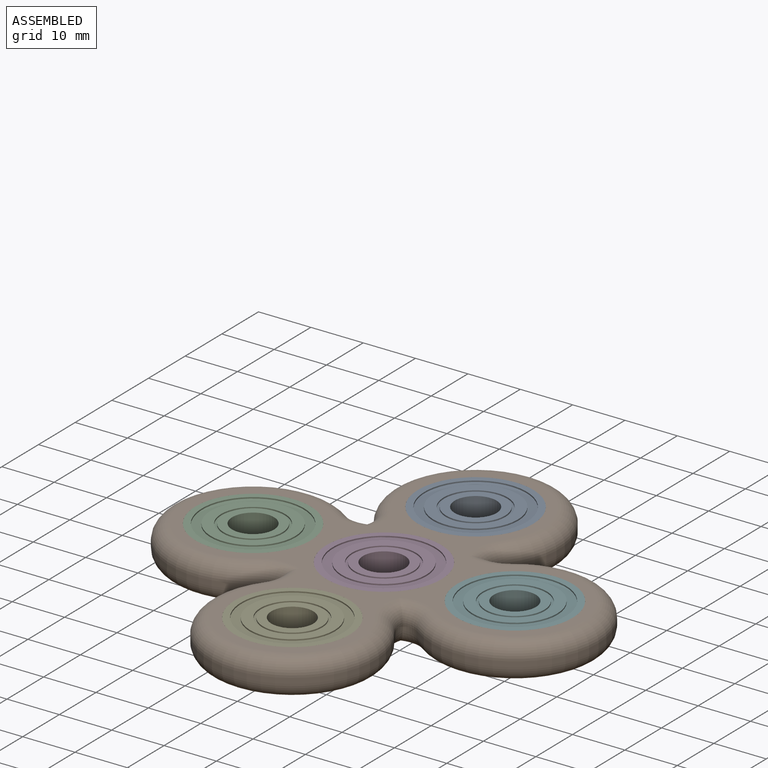
[diagram: assembled view]
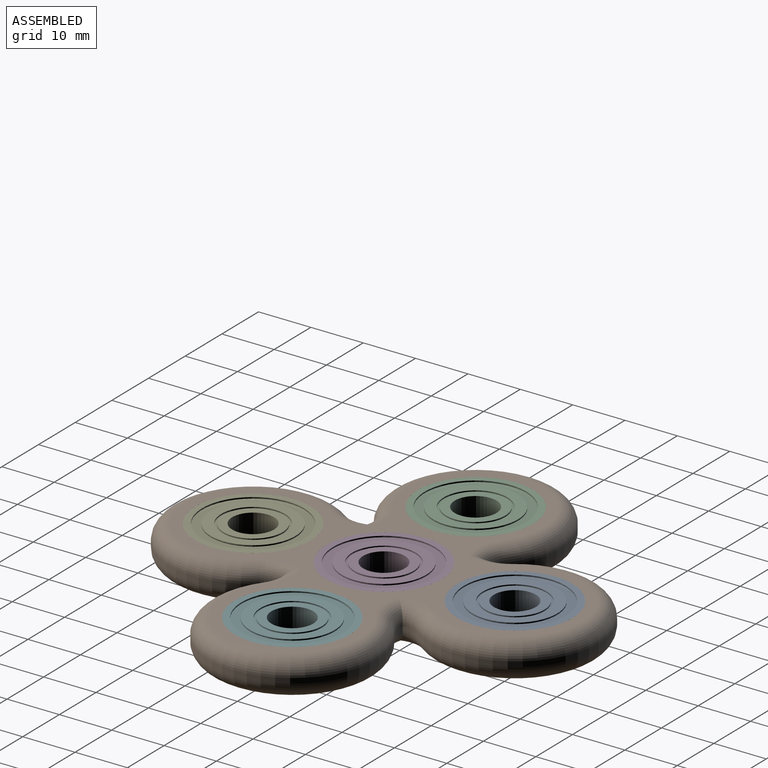
[diagram: assembled view, second angle]
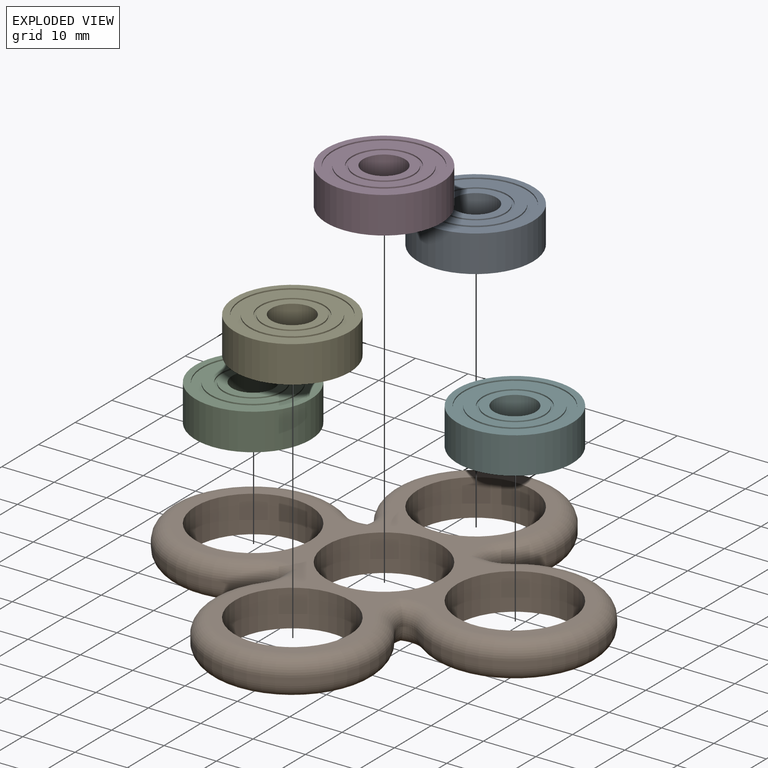
[diagram: exploded view]
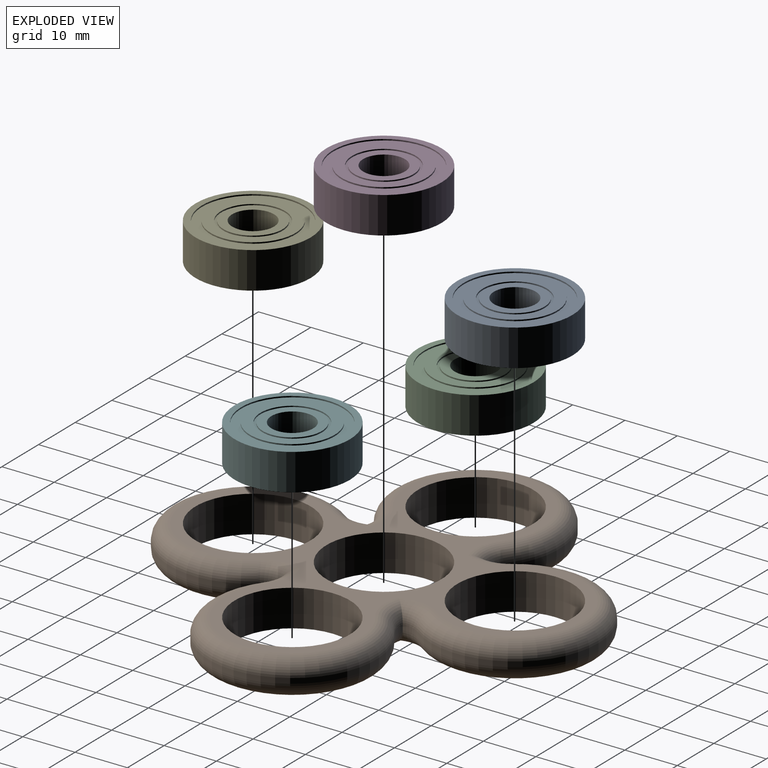
[diagram: exploded view, second angle]
ASSEMBLY  parts=6 mates=5
PART A: 20 faces, bbox 22x22x7 mm
  f0: plane 11.3x11.3mm, normal (0,0,-1), area 50mm2, adj f2,f8
  f1: cylinder r=11mm len=22mm, axis (0,0,-1), area 483.8mm2, adj f3,f12
  f2: cylinder r=4mm len=8mm, axis (0,0,-1), area 175.9mm2, adj f0,f11
  f3: plane 22x22mm, normal (0,0,-1), area 81.5mm2, adj f1,f5
  f4: cylinder r=8.1mm len=16.2mm, axis (0,0,-1), area 12.7mm2, adj f6,f7
  f5: cylinder r=9.75mm len=19.5mm, axis (0,0,-1), area 15.3mm2, adj f3,f6
  f6: plane 19.5x19.5mm, normal (0,0,-1), area 92.5mm2, adj f4,f5
  f7: plane 16.2x16.2mm, normal (0,0,-1), area 89.2mm2, adj f4,f9
  f8: cylinder r=5.65mm len=11.3mm, axis (0,0,-1), area 8.9mm2, adj f0,f10
  f9: cylinder r=6.1mm len=12.2mm, axis (0,0,-1), area 9.6mm2, adj f7,f10
  f10: plane 12.2x12.2mm, normal (0,0,-1), area 16.6mm2, adj f8,f9
  f11: plane 11.3x11.3mm, normal (0,0,1), area 50mm2, adj f2,f17
  f12: plane 22x22mm, normal (0,0,1), area 81.5mm2, adj f1,f14
  f13: cylinder r=8.1mm len=16.2mm, axis (0,0,1), area 12.7mm2, adj f15,f16
  f14: cylinder r=9.75mm len=19.5mm, axis (0,0,1), area 15.3mm2, adj f12,f15
  f15: plane 19.5x19.5mm, normal (0,0,1), area 92.5mm2, adj f13,f14
  f16: plane 16.2x16.2mm, normal (0,0,1), area 89.2mm2, adj f13,f18
  f17: cylinder r=5.65mm len=11.3mm, axis (0,0,1), area 8.9mm2, adj f11,f19
  f18: cylinder r=6.1mm len=12.2mm, axis (0,0,1), area 9.6mm2, adj f16,f19
  f19: plane 12.2x12.2mm, normal (0,0,1), area 16.6mm2, adj f17,f18
PART B: 43 faces, bbox 84.6x84.6x7 mm
  f0: cylinder r=11mm len=22mm, axis (0,0,-1), area 483.8mm2, adj f1,f2
  f1: plane 76x76mm, normal (0,0,1), area 851.3mm2, adj f0,f3,f6,f8,f10,f31,f32,f33
  f2: plane 76x76mm, normal (0,0,-1), area 851.3mm2, adj f0,f3,f6,f8,f10,f19,f20,f21
  f3: cylinder r=11mm len=22mm, axis (0,0,-1), area 483.8mm2, adj f1,f2
  f4: cylinder r=16mm len=32mm, axis (0,0,-1), area 70.7mm2, adj f13,f17,f28,f41
  f5: cylinder r=16mm len=32mm, axis (0,0,-1), area 70.7mm2, adj f15,f18,f22,f35
  f6: cylinder r=11mm len=22mm, axis (0,0,-1), area 483.8mm2, adj f1,f2
  f7: cylinder r=16mm len=32mm, axis (0,0,-1), area 70.7mm2, adj f11,f16,f21,f32
  f8: cylinder r=11mm len=22mm, axis (0,0,-1), area 483.8mm2, adj f1,f2
  f9: cylinder r=16mm len=32mm, axis (0,0,-1), area 70.7mm2, adj f12,f14,f27,f38
  f10: cylinder r=11mm len=22mm, axis (0,0,-1), area 483.8mm2, adj f1,f2
  f11: cylinder r=5mm len=3.57mm, axis (0,0,-1), area 3.8mm2, adj f7,f12,f23,f34
  f12: cylinder r=5mm len=3.57mm, axis (0,0,1), area 3.8mm2, adj f9,f11,f25,f36
  f13: cylinder r=5mm len=3.57mm, axis (0,0,1), area 3.8mm2, adj f4,f14,f30,f42
  f14: cylinder r=5mm len=3.57mm, axis (0,0,-1), area 3.8mm2, adj f9,f13,f29,f40
  f15: cylinder r=5mm len=3.57mm, axis (0,0,-1), area 3.8mm2, adj f5,f16,f20,f33
  f16: cylinder r=5mm len=3.57mm, axis (0,0,1), area 3.8mm2, adj f7,f15,f19,f31
  f17: cylinder r=5mm len=3.57mm, axis (0,0,-1), area 3.8mm2, adj f4,f18,f26,f39
  f18: cylinder r=5mm len=3.57mm, axis (0,0,1), area 3.8mm2, adj f5,f17,f24,f37
  f19: torus R=8mm, axis (0,0,-1), area 25.5mm2, adj f2,f16,f20,f21
  f20: torus R=8mm, axis (0,0,-1), area 25.5mm2, adj f2,f15,f19,f22
  f21: torus R=13mm, axis (0,0,-1), area 310.3mm2, adj f2,f7,f19,f23
  f22: torus R=13mm, axis (0,0,-1), area 310.3mm2, adj f2,f5,f20,f24
  f23: torus R=8mm, axis (0,0,-1), area 25.5mm2, adj f2,f11,f21,f25
  f24: torus R=8mm, axis (0,0,-1), area 25.5mm2, adj f2,f18,f22,f26
  f25: torus R=8mm, axis (0,0,-1), area 25.5mm2, adj f2,f12,f23,f27
  f26: torus R=8mm, axis (0,0,-1), area 25.5mm2, adj f2,f17,f24,f28
  f27: torus R=13mm, axis (0,0,-1), area 310.3mm2, adj f2,f9,f25,f29
  f28: torus R=13mm, axis (0,0,-1), area 310.3mm2, adj f2,f4,f26,f30
  f29: torus R=8mm, axis (0,0,-1), area 25.5mm2, adj f2,f14,f27,f30
  f30: torus R=8mm, axis (0,0,-1), area 25.5mm2, adj f2,f13,f28,f29
  f31: torus R=8mm, axis (0,0,-1), area 25.5mm2, adj f1,f16,f32,f33
  f32: torus R=13mm, axis (0,0,-1), area 310.3mm2, adj f1,f7,f31,f34
  f33: torus R=8mm, axis (0,0,-1), area 25.5mm2, adj f1,f15,f31,f35
  f34: torus R=8mm, axis (0,0,-1), area 25.5mm2, adj f1,f11,f32,f36
  f35: torus R=13mm, axis (0,0,-1), area 310.3mm2, adj f1,f5,f33,f37
  f36: torus R=8mm, axis (0,0,-1), area 25.5mm2, adj f1,f12,f34,f38
  f37: torus R=8mm, axis (0,0,-1), area 25.5mm2, adj f1,f18,f35,f39
  f38: torus R=13mm, axis (0,0,-1), area 310.3mm2, adj f1,f9,f36,f40
  f39: torus R=8mm, axis (0,0,-1), area 25.5mm2, adj f1,f17,f37,f41
  f40: torus R=8mm, axis (0,0,-1), area 25.5mm2, adj f1,f14,f38,f42
  f41: torus R=13mm, axis (0,0,-1), area 310.3mm2, adj f1,f4,f39,f42
  f42: torus R=8mm, axis (0,0,-1), area 25.5mm2, adj f1,f13,f40,f41
PART C: same geometry as A
PART D: same geometry as A
PART E: same geometry as A
PART F: same geometry as A
PLACE A t=(0,25,-3.5)mm
PLACE B at identity fixed
PLACE C t=(-25,0,-3.5)mm
PLACE D rot(axis=(1,0,0),180deg) t=(0,0,3.5)mm
PLACE E t=(0,-25,-3.5)mm
PLACE F t=(25,0,-3.5)mm
MATE fastened E.f2 <-> B.f7  axis (0,0,-1) through (0,-25,0)mm
MATE fastened D.f2 <-> B.f0  axis (0,0,1) through (0,0,0)mm
MATE fastened F.f2 <-> B.f9  axis (0,0,-1) through (25,0,0)mm
MATE fastened C.f2 <-> B.f5  axis (0,0,-1) through (-25,0,0)mm
MATE fastened A.f2 <-> B.f3  axis (0,0,-1) through (0,25,0)mm
